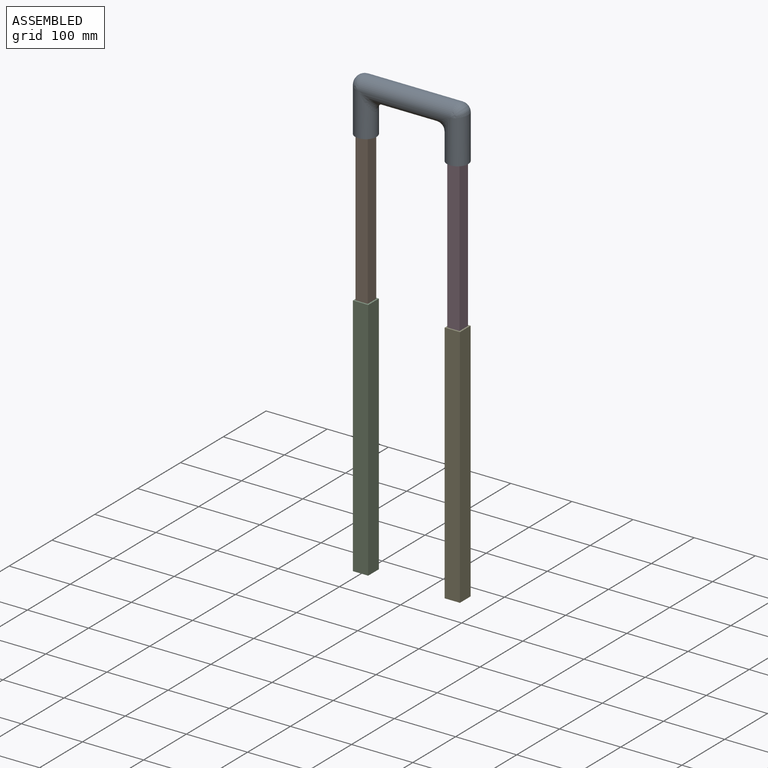
[diagram: assembled view]
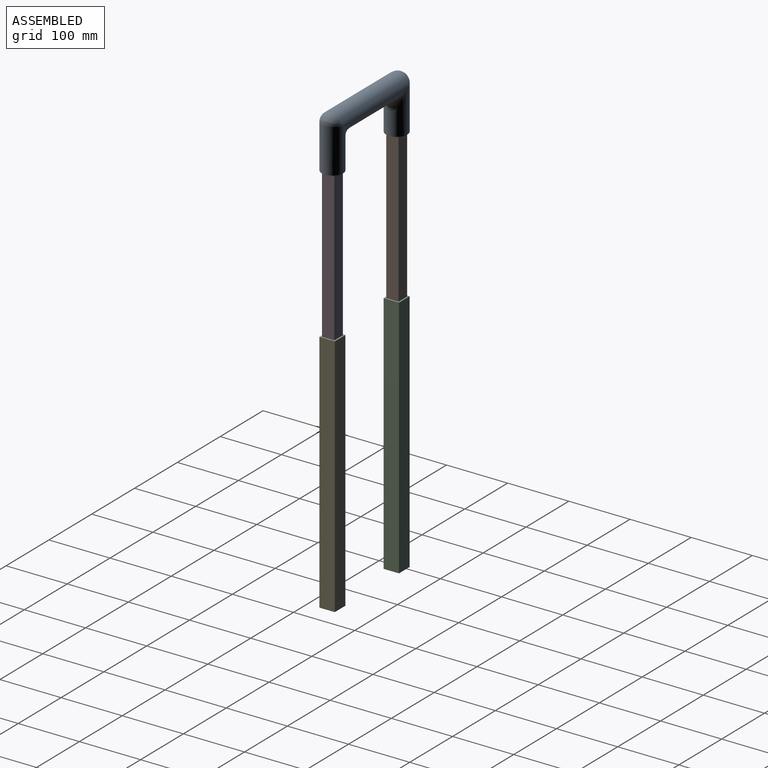
[diagram: assembled view, second angle]
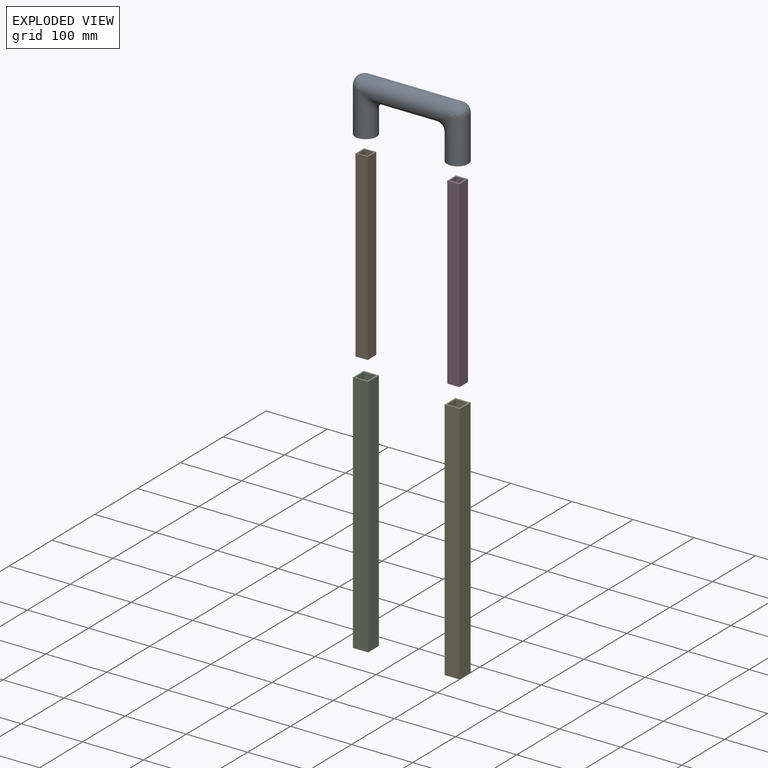
[diagram: exploded view]
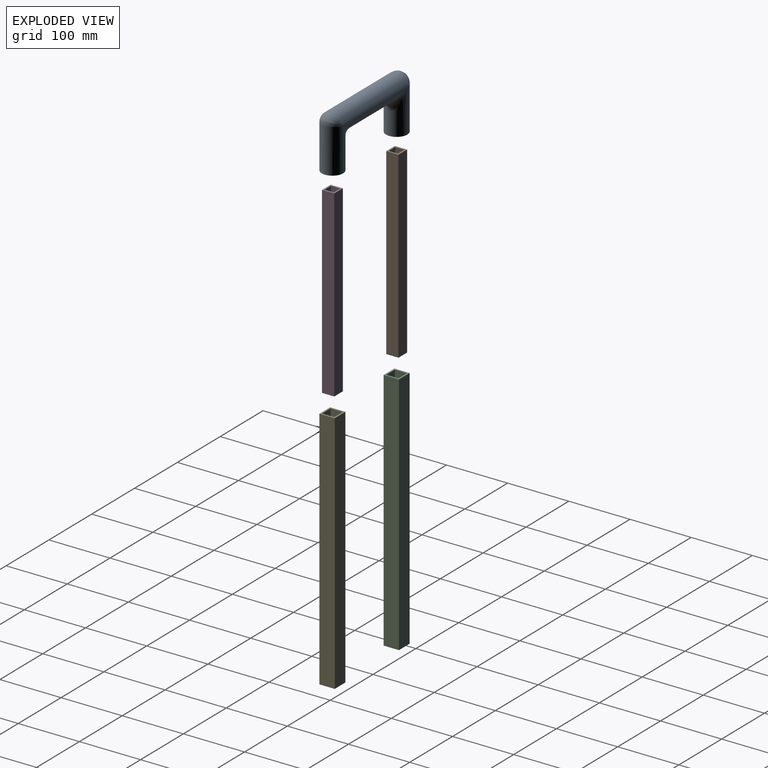
[diagram: exploded view, second angle]
ASSEMBLY  parts=5 mates=4
PART A: 19 faces, bbox 185x35x87.5 mm
  f0: plane 35x35mm, normal (0,0,-1), area 562.1mm2, adj f2,f14,f15,f16,f17
  f1: plane 35x35mm, normal (0,0,-1), area 562.1mm2, adj f4,f9,f10,f11,f12
  f2: cylinder r=17.5mm len=72.5mm, axis (0,0,-1), area 6646.9mm2, adj f0,f5,f6
  f3: cylinder r=17.5mm len=155.02mm, axis (-1,0,0), area 14393.4mm2, adj f5,f6,f7,f8
  f4: cylinder r=17.5mm len=72.5mm, axis (0,0,1), area 6646.9mm2, adj f1,f7,f8
  f5: bspline ~35x32.5mm, area 979.4mm2, adj f2,f3
  f6: bspline ~35x17.5mm, area 836.6mm2, adj f2,f3
  f7: bspline ~35x32.5mm, area 979.5mm2, adj f3,f4
  f8: bspline ~35x17.5mm, area 836.5mm2, adj f3,f4
  f9: plane 25x20mm, normal (-1,0,0), area 500mm2, adj f1,f10,f12,f13
  f10: plane 25x20mm, normal (0,-1,0), area 500mm2, adj f1,f9,f11,f13
  f11: plane 25x20mm, normal (1,0,0), area 500mm2, adj f1,f10,f12,f13
  f12: plane 25x20mm, normal (0,1,0), area 500mm2, adj f1,f9,f11,f13
  f13: plane 20x20mm, normal (0,0,-1), area 400mm2, adj f9,f10,f11,f12
  f14: plane 25x20mm, normal (0,-1,0), area 500mm2, adj f0,f15,f17,f18
  f15: plane 25x20mm, normal (1,0,0), area 500mm2, adj f0,f14,f16,f18
  f16: plane 25x20mm, normal (0,1,0), area 500mm2, adj f0,f15,f17,f18
  f17: plane 25x20mm, normal (-1,0,0), area 500mm2, adj f0,f14,f16,f18
  f18: plane 20x20mm, normal (0,0,-1), area 400mm2, adj f14,f15,f16,f17
PART B: 10 faces, bbox 20x20x300 mm
  f0: plane 300x15mm, normal (0,-1,0), area 4500mm2, adj f1,f7,f8,f9
  f1: plane 300x15mm, normal (-1,0,0), area 4500mm2, adj f0,f2,f8,f9
  f2: plane 300x15mm, normal (0,1,0), area 4500mm2, adj f1,f7,f8,f9
  f3: plane 300x20mm, normal (1,0,0), area 6000mm2, adj f4,f6,f8,f9
  f4: plane 300x20mm, normal (0,1,0), area 6000mm2, adj f3,f5,f8,f9
  f5: plane 300x20mm, normal (-1,0,0), area 6000mm2, adj f4,f6,f8,f9
  f6: plane 300x20mm, normal (0,-1,0), area 6000mm2, adj f3,f5,f8,f9
  f7: plane 300x15mm, normal (1,0,0), area 4500mm2, adj f0,f2,f8,f9
  f8: plane 20x20mm, normal (0,0,-1), area 175mm2, adj f0,f1,f2,f3,f4,f5,f6,f7
  f9: plane 20x20mm, normal (0,0,1), area 175mm2, adj f0,f1,f2,f3,f4,f5,f6,f7
PART C: 16 faces, bbox 25x25x400 mm
  f0: plane 30x20mm, normal (0,-1,0), area 600mm2, adj f1,f3,f12,f15
  f1: plane 30x20mm, normal (-1,0,0), area 600mm2, adj f0,f2,f12,f15
  f2: plane 30x20mm, normal (0,1,0), area 600mm2, adj f1,f3,f12,f15
  f3: plane 30x20mm, normal (1,0,0), area 600mm2, adj f0,f2,f12,f15
  f4: plane 345x20mm, normal (0,-1,0), area 6900mm2, adj f5,f11,f13,f14
  f5: plane 345x20mm, normal (-1,0,0), area 6900mm2, adj f4,f6,f13,f14
  f6: plane 345x20mm, normal (0,1,0), area 6900mm2, adj f5,f11,f13,f14
  f7: plane 400x25mm, normal (1,0,0), area 10000mm2, adj f8,f10,f12,f13
  f8: plane 400x25mm, normal (0,1,0), area 10000mm2, adj f7,f9,f12,f13
  f9: plane 400x25mm, normal (-1,0,0), area 10000mm2, adj f8,f10,f12,f13
  f10: plane 400x25mm, normal (0,-1,0), area 10000mm2, adj f7,f9,f12,f13
  f11: plane 345x20mm, normal (1,0,0), area 6900mm2, adj f4,f6,f13,f14
  f12: plane 25x25mm, normal (0,0,1), area 225mm2, adj f0,f1,f2,f3,f7,f8,f9,f10
  f13: plane 25x25mm, normal (0,0,-1), area 225mm2, adj f4,f5,f6,f7,f8,f9,f10,f11
  f14: plane 20x20mm, normal (0,0,-1), area 400mm2, adj f4,f5,f6,f11
  f15: plane 20x20mm, normal (0,0,1), area 400mm2, adj f0,f1,f2,f3
PART D: same geometry as B
PART E: same geometry as C
PLACE A t=(-7.33,-248.89,212.97)mm
PLACE B t=(-82.33,-248.89,167.97)mm
PLACE C t=(-82.33,-248.89,-502.03)mm
PLACE D t=(67.67,-248.89,167.97)mm
PLACE E t=(67.67,-248.89,-502.03)mm
MATE fastened A.f18 <-> B.f9  axis (0,0,1) through (-72.33,-238.89,167.97)mm
MATE fastened D.f8 <-> E.f15  axis (0,0,1) through (77.67,-258.89,-132.03)mm
MATE fastened A.f13 <-> D.f9  axis (0,0,1) through (77.67,-238.89,167.97)mm
MATE fastened B.f8 <-> C.f15  axis (0,0,1) through (-72.33,-258.89,-132.03)mm
